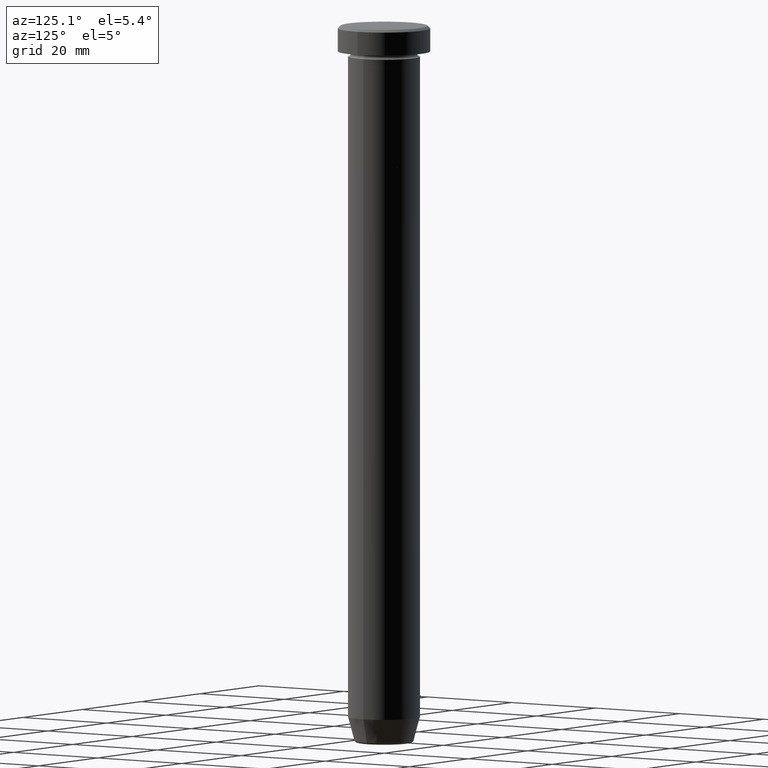
[diagram: clean part render]
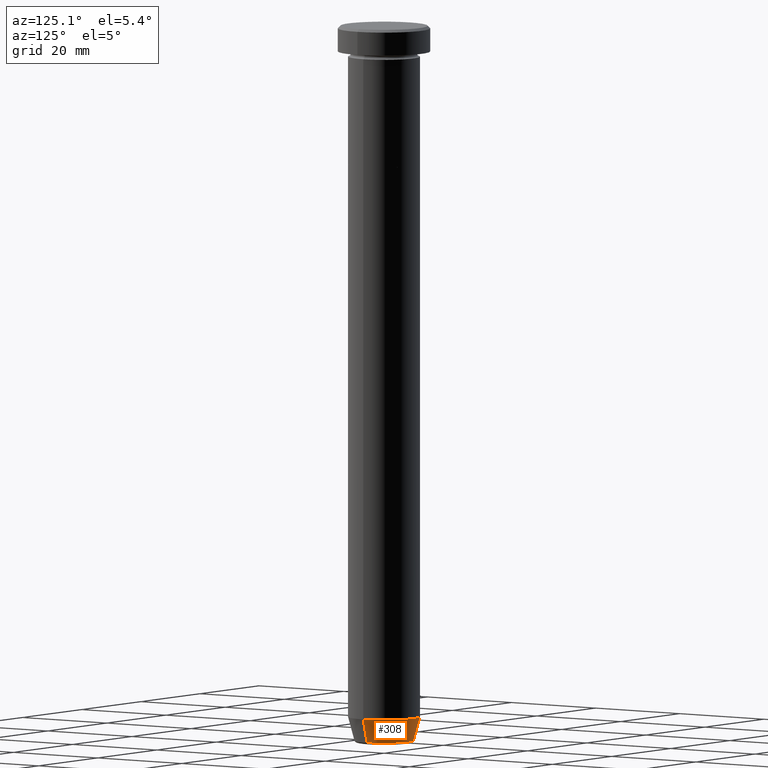
[diagram: same view with one face highlighted and labeled with its STEP entity id]
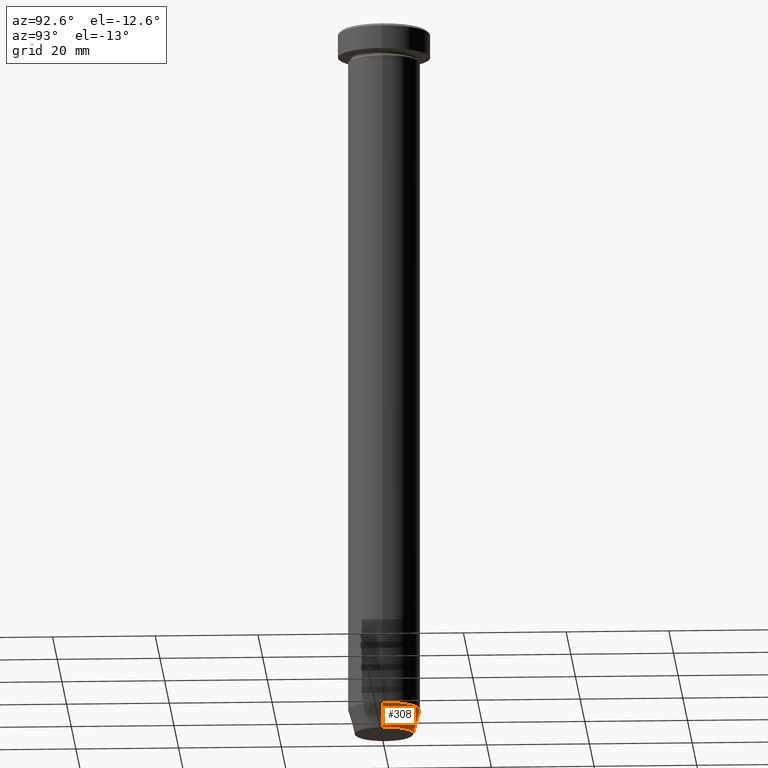
[diagram: same view with one face highlighted and labeled with its STEP entity id]
A machine part, auxiliary view. The second image highlights one B-rep face of the part: STEP entity #308.
A second angle (auxiliary view) of the same face is appended — the face is thin or edge-on in the first view.
In plain terms, the highlighted conical surface has half-angle 15 deg.
Its self-contained STEP definition (entity closure, byte-faithful):
#8 = AXIS2_PLACEMENT_3D ( 'NONE', #577, #136, #318 ) ;
#20 = DIRECTION ( 'NONE',  ( -0.000000000000000000, -0.000000000000000000, 1.000000000000000000 ) ) ;
#42 = CIRCLE ( 'NONE', #8, 7.000000000000000000 ) ;
#77 = VERTEX_POINT ( 'NONE', #559 ) ;
#80 = FACE_OUTER_BOUND ( 'NONE', #218, .T. ) ;
#82 = CARTESIAN_POINT ( 'NONE',  ( -7.000000000000000000, 8.572527594031473190E-16, -135.0000000000000000 ) ) ;
#136 = DIRECTION ( 'NONE',  ( -0.000000000000000000, -0.000000000000000000, 1.000000000000000000 ) ) ;
#139 = EDGE_CURVE ( 'NONE', #77, #423, #512, .T. ) ;
#141 = DIRECTION ( 'NONE',  ( 1.000000000000000000, 0.000000000000000000, 0.000000000000000000 ) ) ;
#147 = CONICAL_SURFACE ( 'NONE', #292, 5.660254037844381969, 0.2617993877991500740 ) ;
#149 = CARTESIAN_POINT ( 'NONE',  ( -5.660254037844381969, 6.931811989807004350E-16, -140.0000000000000000 ) ) ;
#157 = ORIENTED_EDGE ( 'NONE', *, *, #441, .T. ) ;
#190 = AXIS2_PLACEMENT_3D ( 'NONE', #393, #20, #578 ) ;
#193 = DIRECTION ( 'NONE',  ( 0.2588190451025213501, 0.000000000000000000, 0.9659258262890680902 ) ) ;
#218 = EDGE_LOOP ( 'NONE', ( #157, #327, #562, #369 ) ) ;
#224 = CARTESIAN_POINT ( 'NONE',  ( 0.000000000000000000, 0.000000000000000000, -140.0000000000000000 ) ) ;
#267 = LINE ( 'NONE', #149, #317 ) ;
#283 = EDGE_CURVE ( 'NONE', #423, #463, #42, .T. ) ;
#292 = AXIS2_PLACEMENT_3D ( 'NONE', #224, #442, #141 ) ;
#308 = ADVANCED_FACE ( 'NONE', ( #80 ), #147, .T. ) ;
#314 = CARTESIAN_POINT ( 'NONE',  ( 5.660254037844381969, 0.000000000000000000, -140.0000000000000000 ) ) ;
#317 = VECTOR ( 'NONE', #588, 1000.000000000000000 ) ;
#318 = DIRECTION ( 'NONE',  ( 1.000000000000000000, 0.000000000000000000, 0.000000000000000000 ) ) ;
#321 = VERTEX_POINT ( 'NONE', #362 ) ;
#322 = EDGE_CURVE ( 'NONE', #321, #463, #267, .T. ) ;
#324 = CIRCLE ( 'NONE', #190, 5.759553456999436882 ) ;
#327 = ORIENTED_EDGE ( 'NONE', *, *, #322, .T. ) ;
#337 = VECTOR ( 'NONE', #193, 1000.000000000000000 ) ;
#362 = CARTESIAN_POINT ( 'NONE',  ( -5.759553456999436882, 7.812973149831951773E-16, -139.6294095225512706 ) ) ;
#369 = ORIENTED_EDGE ( 'NONE', *, *, #139, .F. ) ;
#378 = CARTESIAN_POINT ( 'NONE',  ( 7.000000000000000000, 0.000000000000000000, -135.0000000000000000 ) ) ;
#393 = CARTESIAN_POINT ( 'NONE',  ( 0.000000000000000000, 0.000000000000000000, -139.6294095225512706 ) ) ;
#423 = VERTEX_POINT ( 'NONE', #378 ) ;
#441 = EDGE_CURVE ( 'NONE', #77, #321, #324, .T. ) ;
#442 = DIRECTION ( 'NONE',  ( -0.000000000000000000, -0.000000000000000000, 1.000000000000000000 ) ) ;
#463 = VERTEX_POINT ( 'NONE', #82 ) ;
#512 = LINE ( 'NONE', #314, #337 ) ;
#559 = CARTESIAN_POINT ( 'NONE',  ( 5.759553456999436882, 0.000000000000000000, -139.6294095225512706 ) ) ;
#562 = ORIENTED_EDGE ( 'NONE', *, *, #283, .F. ) ;
#577 = CARTESIAN_POINT ( 'NONE',  ( 0.000000000000000000, 0.000000000000000000, -135.0000000000000000 ) ) ;
#578 = DIRECTION ( 'NONE',  ( -1.000000000000000000, 0.000000000000000000, 0.000000000000000000 ) ) ;
#588 = DIRECTION ( 'NONE',  ( -0.2588190451025213501, 3.169619151431772337E-17, 0.9659258262890680902 ) ) ;